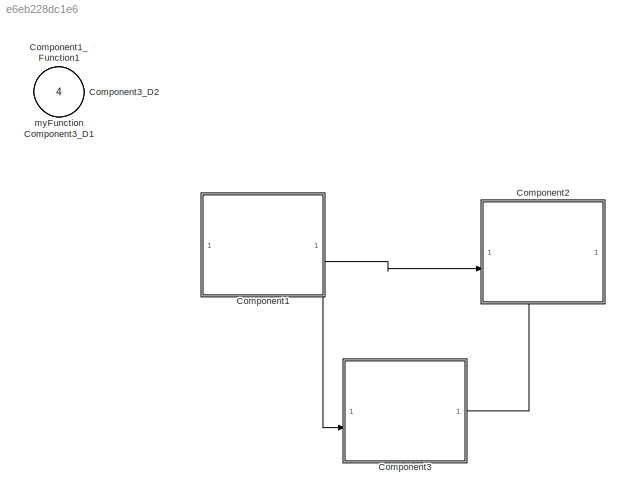
MODEL slx_e6eb228dc1e6
KIND model
CONFIG AbsTol = auto
CONFIG EnableMultiTasking = off
CONFIG FixedStep = auto
CONFIG MaxStep = auto
CONFIG MinStep = auto
CONFIG RelTol = 1e-3
CONFIG SampleTimeConstraint = Unconstrained
CONFIG SolverName = FixedStepDiscrete
CONFIG StartTime = 0.0
CONFIG StopTime = 10.0
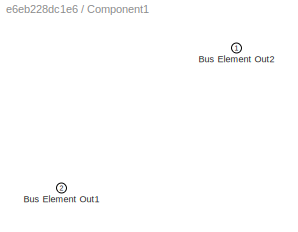
BLOCK [SubSystem] Component1
  PortSchema = {"entries":[{"content":{"headerSize":26,"margin":15,"minimumSpacing":25,"sides":[{"content":{},"type":"ConnectorPlacement.EquallySpacedRectSide","uuid":"d83942db-f49c-4710-95aa-548a089e07ea"},{"content":{"connectorIds":["Out2"],"side":"RIGHT"},"type":"ConnectorPlacement.EquallySpacedRectSide","uuid":"667c3c9a-ae9a-4a32-aa0d-58de895dfc7b"},{"content":{"side":"TOP"},"type":"ConnectorPlacement.Equall...<+398ch>
BLOCK [Outport] Component1/Bus Element Out1
  Port = 2
BLOCK [Outport] Component1/Bus Element Out2
BLOCK [Inport] Component1_Function1
  OutputFunctionCall = on
  Port = 2
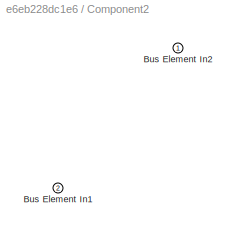
BLOCK [SubSystem] Component2
  PortSchema = {"entries":[{"content":{"headerSize":26,"margin":15,"minimumSpacing":25,"sides":[{"content":{"connectorIds":["In2"]},"type":"ConnectorPlacement.EquallySpacedRectSide","uuid":"d83942db-f49c-4710-95aa-548a089e07ea"},{"content":{"side":"RIGHT"},"type":"ConnectorPlacement.EquallySpacedRectSide","uuid":"667c3c9a-ae9a-4a32-aa0d-58de895dfc7b"},{"content":{"side":"TOP"},"type":"ConnectorPlacement.EquallyS...<+395ch>
BLOCK [Inport] Component2/Bus Element In1
  Port = 2
BLOCK [Inport] Component2/Bus Element In2
BLOCK [ModelReference] Component3
  CachedPortDiscreteRates = [0.2]
  ModelEventPortInfo = P:D1[0.2][0][0]
  ModelNameDialog = Component3
  ModelReferenceVersion = 1.3
  PortSchema = {"entries":[{"content":{"headerSize":38,"margin":15,"minimumSpacing":25,"sides":[{"content":{"connectorIds":["In2"]},"type":"ConnectorPlacement.EquallySpacedRectSide","uuid":"d83942db-f49c-4710-95aa-548a089e07ea"},{"content":{"connectorIds":["Out1"],"side":"RIGHT"},"type":"ConnectorPlacement.EquallySpacedRectSide","uuid":"667c3c9a-ae9a-4a32-aa0d-58de895dfc7b"},{"content":{"side":"TOP"},"type":"Con...<+425ch>
  ScheduleRates = on
BLOCK [Inport] Component3_D1
  OutputFunctionCall = on
  Port = 3
BLOCK [Inport] Component3_D2
  OutputFunctionCall = on
  Port = 4
BLOCK [Inport] myFunction
  OutputFunctionCall = on
  SampleTime = 1
LINE Component1:1 -> Component3:2
LINE Component1:2 -> Component2:2
LINE Component3:1 -> Component2:1
